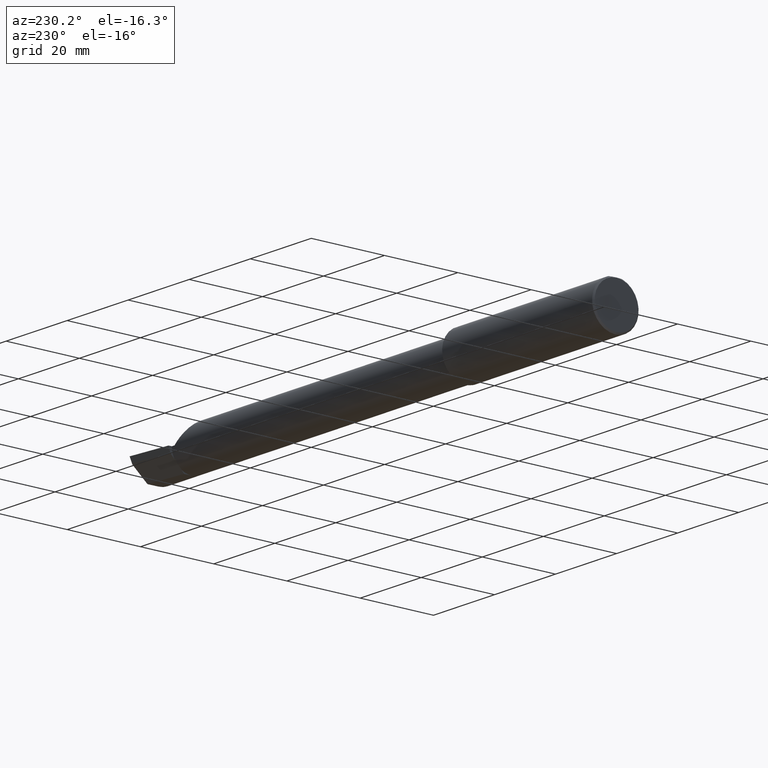
[diagram: clean part render]
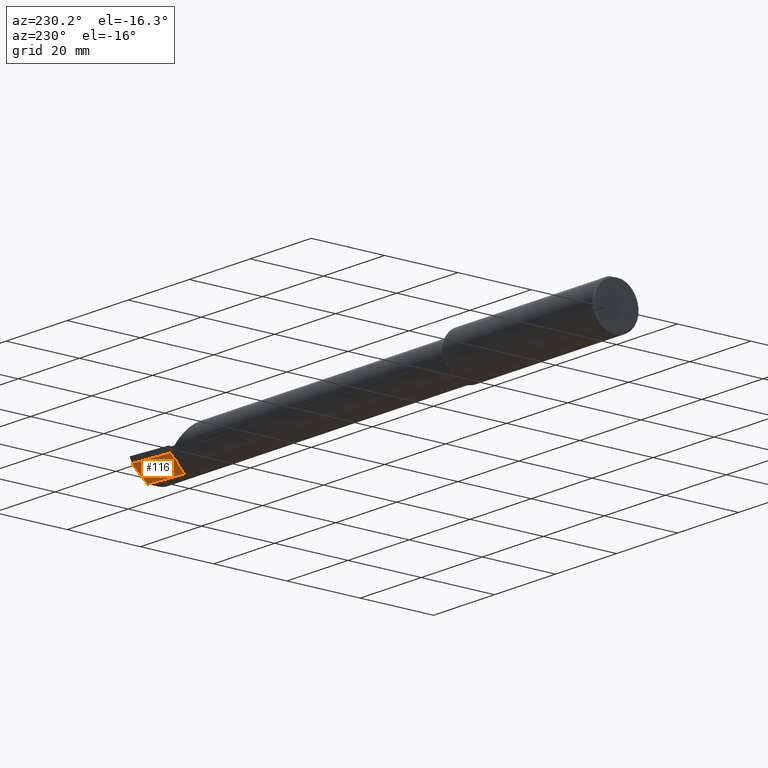
[diagram: same view with one face highlighted and labeled with its STEP entity id]
A machine part, auxiliary view. The second image highlights one B-rep face of the part: STEP entity #116.
In plain terms, the highlighted planar face has unit normal (0.0689, -0.716, 0.6947).
Its self-contained STEP definition (entity closure, byte-faithful):
#6 = LINE ( 'NONE', #798, #102 ) ;
#13 = DIRECTION ( 'NONE',  ( -0.1053106618241940323, -0.6976485211320168078, -0.7086580314005197501 ) ) ;
#36 = LINE ( 'NONE', #670, #414 ) ;
#38 = CARTESIAN_POINT ( 'NONE',  ( 5.540349815208491790, 0.05592018782259707693, -0.1832193089843160150 ) ) ;
#51 = EDGE_CURVE ( 'NONE', #821, #621, #783, .T. ) ;
#62 = CARTESIAN_POINT ( 'NONE',  ( 5.990474961019650380, 0.2080126185684992302, -0.07112352112763106748 ) ) ;
#64 = EDGE_CURVE ( 'NONE', #661, #251, #852, .T. ) ;
#70 = CARTESIAN_POINT ( 'NONE',  ( 5.540349815208491790, 0.05592018782259707693, -0.1832193089843160150 ) ) ;
#77 = CARTESIAN_POINT ( 'NONE',  ( 5.985236590184793926, 0.2182997624328546771, -0.06000000000000001860 ) ) ;
#80 = PLANE ( 'NONE',  #696 ) ;
#81 =( BOUNDED_CURVE ( )  B_SPLINE_CURVE ( 3, ( #740, #607, #212, #145 ),
 .UNSPECIFIED., .F., .F. ) 
 B_SPLINE_CURVE_WITH_KNOTS ( ( 4, 4 ),
 ( 2.868174658477150363, 2.883234730632700860 ),
 .UNSPECIFIED. ) 
 CURVE ( )  GEOMETRIC_REPRESENTATION_ITEM ( )  RATIONAL_B_SPLINE_CURVE ( ( 1.000000000000000000, 0.9999810996081960335, 0.9999810996081960335, 1.000000000000000000 ) ) 
 REPRESENTATION_ITEM ( '' )  );
#86 = CARTESIAN_POINT ( 'NONE',  ( 5.990474961019650380, 0.2080126185684992302, -0.07112352112763106748 ) ) ;
#97 = ORIENTED_EDGE ( 'NONE', *, *, #781, .T. ) ;
#102 = VECTOR ( 'NONE', #806, 39.37007874015748143 ) ;
#103 = CARTESIAN_POINT ( 'NONE',  ( 5.543466858877803993, 0.05663251955087983402, -0.1827944341085906699 ) ) ;
#116 = ADVANCED_FACE ( 'NONE', ( #808 ), #80, .F. ) ;
#129 = DIRECTION ( 'NONE',  ( 0.06658005426110773228, -0.6914603011188220627, -0.7193398003386548556 ) ) ;
#139 = EDGE_CURVE ( 'NONE', #661, #294, #81, .T. ) ;
#145 = CARTESIAN_POINT ( 'NONE',  ( 5.544999999999999929, 0.1328281892403431474, -0.1044069278527783029 ) ) ;
#148 = CARTESIAN_POINT ( 'NONE',  ( 5.985635073714584031, 0.2182954141789446856, -0.06004403198038586048 ) ) ;
#150 = ORIENTED_EDGE ( 'NONE', *, *, #139, .T. ) ;
#156 = VERTEX_POINT ( 'NONE', #543 ) ;
#177 = EDGE_CURVE ( 'NONE', #156, #821, #529, .T. ) ;
#178 = LINE ( 'NONE', #364, #321 ) ;
#181 = CARTESIAN_POINT ( 'NONE',  ( 5.991359894127324281, 0.2138750095474696578, -0.06516861643763578738 ) ) ;
#182 = CARTESIAN_POINT ( 'NONE',  ( 5.544999999999999929, 0.1759098001822371471, -0.06000000000000002554 ) ) ;
#204 = CARTESIAN_POINT ( 'NONE',  ( 5.528944985009564661, 0.1743638780700111357, -0.06000000000000002554 ) ) ;
#211 = EDGE_CURVE ( 'NONE', #752, #309, #6, .T. ) ;
#212 = CARTESIAN_POINT ( 'NONE',  ( 5.541044210672205317, 0.1333523194825144975, -0.1034740570574017304 ) ) ;
#216 = ORIENTED_EDGE ( 'NONE', *, *, #211, .T. ) ;
#245 = ORIENTED_EDGE ( 'NONE', *, *, #454, .T. ) ;
#246 = CARTESIAN_POINT ( 'NONE',  ( 5.544999999999999929, 0.05698775240724696101, -0.1825804393148461879 ) ) ;
#251 = VERTEX_POINT ( 'NONE', #70 ) ;
#294 = VERTEX_POINT ( 'NONE', #823 ) ;
#309 = VERTEX_POINT ( 'NONE', #839 ) ;
#313 = ORIENTED_EDGE ( 'NONE', *, *, #64, .F. ) ;
#321 = VECTOR ( 'NONE', #636, 39.37007874015748143 ) ;
#322 = CARTESIAN_POINT ( 'NONE',  ( 5.985635073714584031, 0.2182954141789446856, -0.06004403198038586048 ) ) ;
#338 = LINE ( 'NONE', #681, #372 ) ;
#339 = DIRECTION ( 'NONE',  ( 0.06894566448119621160, -0.7160281025913034503, 0.6946583704589934793 ) ) ;
#344 = DIRECTION ( 'NONE',  ( 0.9953961983671800740, 0.09584575252021028391, -1.516874858616837700E-17 ) ) ;
#364 = CARTESIAN_POINT ( 'NONE',  ( 5.544999999999999929, 0.2148312740513258212, -0.01988118725737621217 ) ) ;
#372 = VECTOR ( 'NONE', #344, 39.37007874015748854 ) ;
#373 = DIRECTION ( 'NONE',  ( 0.9953961983671800740, 0.09584575252021031166, -0.000000000000000000 ) ) ;
#380 = ORIENTED_EDGE ( 'NONE', *, *, #51, .T. ) ;
#385 = LINE ( 'NONE', #455, #389 ) ;
#389 = VECTOR ( 'NONE', #373, 39.37007874015748854 ) ;
#396 = CARTESIAN_POINT ( 'NONE',  ( 5.528944985009564661, 0.1743638780700111357, -0.06000000000000002554 ) ) ;
#404 = DIRECTION ( 'NONE',  ( 0.000000000000000000, -0.6963153109074925462, -0.7177360153954948085 ) ) ;
#414 = VECTOR ( 'NONE', #13, 39.37007874015748854 ) ;
#452 = CARTESIAN_POINT ( 'NONE',  ( 5.532795049205046389, 0.1343794326159111485, -0.1015966078791001453 ) ) ;
#454 = EDGE_CURVE ( 'NONE', #309, #251, #685, .T. ) ;
#455 = CARTESIAN_POINT ( 'NONE',  ( 5.528944985009564661, 0.1743638780700111357, -0.06000000000000002554 ) ) ;
#475 = EDGE_CURVE ( 'NONE', #647, #156, #385, .T. ) ;
#495 = ORIENTED_EDGE ( 'NONE', *, *, #574, .F. ) ;
#512 = CARTESIAN_POINT ( 'NONE',  ( 5.544999999999999929, 0.02733053485622435538, -0.2131499999999999506 ) ) ;
#516 = CARTESIAN_POINT ( 'NONE',  ( 5.989362363380639209, 0.2181189514202952484, -0.06059586115756919467 ) ) ;
#529 =( BOUNDED_CURVE ( )  B_SPLINE_CURVE ( 3, ( #742, #77, #746, #148 ),
 .UNSPECIFIED., .F., .T. ) 
 B_SPLINE_CURVE_WITH_KNOTS ( ( 4, 4 ),
 ( 3.064097098354432447, 3.156599629463122891 ),
 .UNSPECIFIED. ) 
 CURVE ( )  GEOMETRIC_REPRESENTATION_ITEM ( )  RATIONAL_B_SPLINE_CURVE ( ( 1.000000000000000000, 0.9992870672493993078, 0.9992870672493993078, 1.000000000000000000 ) ) 
 REPRESENTATION_ITEM ( '' )  );
#543 = CARTESIAN_POINT ( 'NONE',  ( 5.985034660857463606, 0.2182803188501228897, -0.06000000000000002554 ) ) ;
#570 = ORIENTED_EDGE ( 'NONE', *, *, #772, .T. ) ;
#574 = EDGE_CURVE ( 'NONE', #752, #825, #338, .T. ) ;
#584 = VECTOR ( 'NONE', #129, 39.37007874015748854 ) ;
#607 = CARTESIAN_POINT ( 'NONE',  ( 5.536975816846312348, 0.1338694103809241476, -0.1025372660271246239 ) ) ;
#621 = VERTEX_POINT ( 'NONE', #86 ) ;
#636 = DIRECTION ( 'NONE',  ( 0.000000000000000000, 0.6963153109074925462, 0.7177360153954948085 ) ) ;
#647 = VERTEX_POINT ( 'NONE', #182 ) ;
#661 = VERTEX_POINT ( 'NONE', #452 ) ;
#670 = CARTESIAN_POINT ( 'NONE',  ( 5.983714411583739512, 0.1632262006094397921, -0.1166167083458149317 ) ) ;
#679 = ORIENTED_EDGE ( 'NONE', *, *, #475, .T. ) ;
#681 = CARTESIAN_POINT ( 'NONE',  ( 5.988156289907357710, 0.07000163221415015014, -0.2131499999999999506 ) ) ;
#685 =( BOUNDED_CURVE ( )  B_SPLINE_CURVE ( 3, ( #246, #103, #723, #38 ),
 .UNSPECIFIED., .F., .F. ) 
 B_SPLINE_CURVE_WITH_KNOTS ( ( 4, 4 ),
 ( 3.399950576546887593, 3.405787439796299054 ),
 .UNSPECIFIED. ) 
 CURVE ( )  GEOMETRIC_REPRESENTATION_ITEM ( )  RATIONAL_B_SPLINE_CURVE ( ( 1.000000000000000000, 0.9999971609209656886, 0.9999971609209656886, 1.000000000000000000 ) ) 
 REPRESENTATION_ITEM ( '' )  );
#696 = AXIS2_PLACEMENT_3D ( 'NONE', #204, #339, #404 ) ;
#723 = CARTESIAN_POINT ( 'NONE',  ( 5.541916792879874265, 0.05627666367902695727, -0.1830073912696828509 ) ) ;
#725 = CARTESIAN_POINT ( 'NONE',  ( 5.969369008890597073, 0.06819262280682680810, -0.2131499999999999506 ) ) ;
#740 = CARTESIAN_POINT ( 'NONE',  ( 5.532795049205046389, 0.1343794326159111485, -0.1015966078791001453 ) ) ;
#742 = CARTESIAN_POINT ( 'NONE',  ( 5.985034660857463606, 0.2182803188501228897, -0.06000000000000002554 ) ) ;
#744 = CARTESIAN_POINT ( 'NONE',  ( 5.985635073714584031, 0.2182954141789446856, -0.06004403198038586048 ) ) ;
#746 = CARTESIAN_POINT ( 'NONE',  ( 5.985436870590294056, 0.2183047977990060506, -0.06001468779820767763 ) ) ;
#752 = VERTEX_POINT ( 'NONE', #512 ) ;
#767 = EDGE_LOOP ( 'NONE', ( #679, #843, #380, #97, #495, #216, #245, #313, #150, #570 ) ) ;
#772 = EDGE_CURVE ( 'NONE', #294, #647, #178, .T. ) ;
#781 = EDGE_CURVE ( 'NONE', #621, #825, #36, .T. ) ;
#783 =( BOUNDED_CURVE ( )  B_SPLINE_CURVE ( 3, ( #322, #516, #181, #62 ),
 .UNSPECIFIED., .F., .F. ) 
 B_SPLINE_CURVE_WITH_KNOTS ( ( 4, 4 ),
 ( 3.156599629463122891, 4.715023529952368619 ),
 .UNSPECIFIED. ) 
 CURVE ( )  GEOMETRIC_REPRESENTATION_ITEM ( )  RATIONAL_B_SPLINE_CURVE ( ( 1.000000000000000000, 0.8076450242550438086, 0.8076450242550438086, 1.000000000000000000 ) ) 
 REPRESENTATION_ITEM ( '' )  );
#798 = CARTESIAN_POINT ( 'NONE',  ( 5.544999999999999929, 0.2148312740513258212, -0.01988118725737621217 ) ) ;
#806 = DIRECTION ( 'NONE',  ( 0.000000000000000000, 0.6963153109074925462, 0.7177360153954948085 ) ) ;
#808 = FACE_OUTER_BOUND ( 'NONE', #767, .T. ) ;
#821 = VERTEX_POINT ( 'NONE', #744 ) ;
#823 = CARTESIAN_POINT ( 'NONE',  ( 5.544999999999999929, 0.1328281892403431474, -0.1044069278527783029 ) ) ;
#825 = VERTEX_POINT ( 'NONE', #725 ) ;
#839 = CARTESIAN_POINT ( 'NONE',  ( 5.544999999999999929, 0.05698775240724696101, -0.1825804393148461879 ) ) ;
#843 = ORIENTED_EDGE ( 'NONE', *, *, #177, .T. ) ;
#852 = LINE ( 'NONE', #396, #584 ) ;